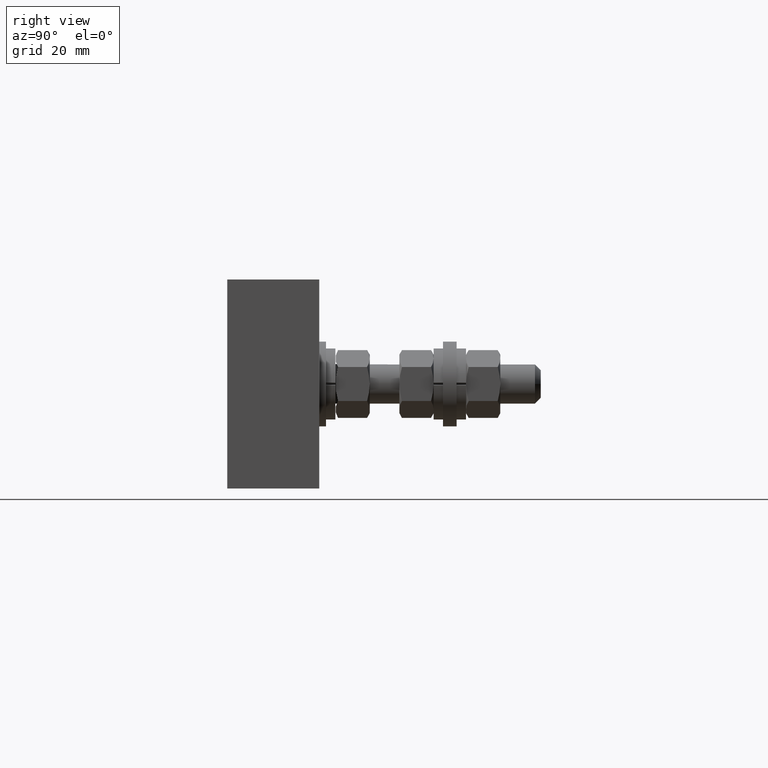
[diagram: clean part render]
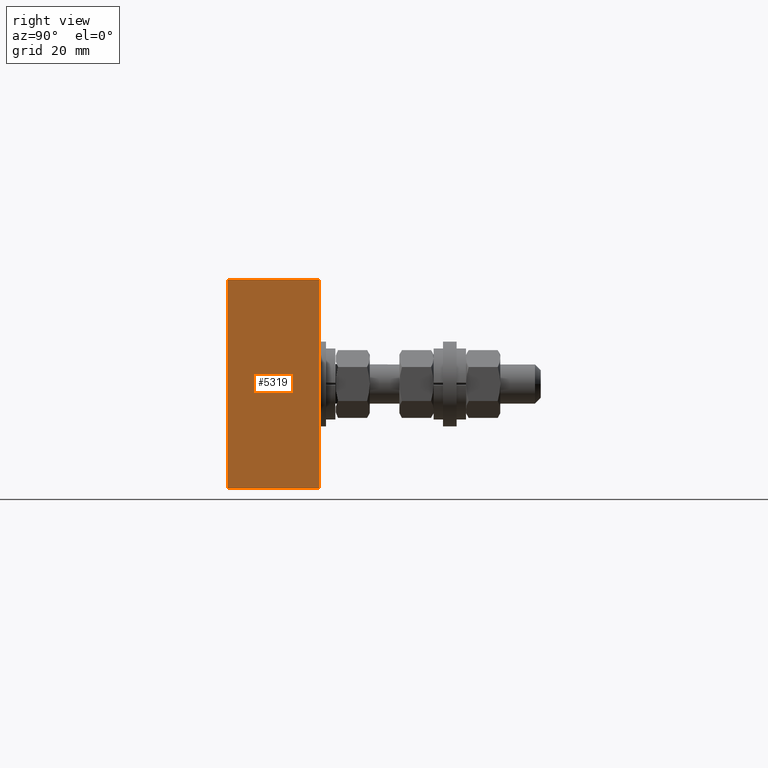
[diagram: same view with one face highlighted and labeled with its STEP entity id]
A machine part, right view. The second image highlights one B-rep face of the part: STEP entity #5319.
In plain terms, the highlighted planar face has unit normal (-1, 0, 0).
Its self-contained STEP definition (entity closure, byte-faithful):
#45 = ORIENTED_EDGE ( 'NONE', *, *, #6151, .T. ) ;
#313 = FACE_OUTER_BOUND ( 'NONE', #5864, .T. ) ;
#1536 = VECTOR ( 'NONE', #4740, 39.37007874015748100 ) ;
#1709 = ORIENTED_EDGE ( 'NONE', *, *, #5091, .T. ) ;
#1722 = LINE ( 'NONE', #5367, #1536 ) ;
#1781 = EDGE_CURVE ( 'NONE', #1983, #7072, #6859, .T. ) ;
#1833 = LINE ( 'NONE', #2765, #6442 ) ;
#1864 = CARTESIAN_POINT ( 'NONE',  ( 5.330000000000000100, -1.733125000000000000, 1.000000000000000000 ) ) ;
#1983 = VERTEX_POINT ( 'NONE', #1864 ) ;
#2070 = VECTOR ( 'NONE', #5397, 39.37007874015748100 ) ;
#2147 = CARTESIAN_POINT ( 'NONE',  ( 5.330000000000000100, -2.613125000000000100, 1.000000000000000000 ) ) ;
#2494 = VECTOR ( 'NONE', #6681, 39.37007874015748100 ) ;
#2754 = DIRECTION ( 'NONE',  ( 0.0000000000000000000, 0.0000000000000000000, 1.000000000000000000 ) ) ;
#2765 = CARTESIAN_POINT ( 'NONE',  ( 5.330000000000000100, -2.613125000000000100, 1.000000000000000000 ) ) ;
#3050 = CARTESIAN_POINT ( 'NONE',  ( 5.330000000000000100, -2.613125000000000100, 1.000000000000000000 ) ) ;
#3794 = ORIENTED_EDGE ( 'NONE', *, *, #1781, .F. ) ;
#4175 = CARTESIAN_POINT ( 'NONE',  ( 5.330000000000000100, -1.733125000000000000, 1.000000000000000000 ) ) ;
#4497 = PLANE ( 'NONE',  #4641 ) ;
#4539 = ORIENTED_EDGE ( 'NONE', *, *, #7119, .F. ) ;
#4641 = AXIS2_PLACEMENT_3D ( 'NONE', #2147, #6344, #2754 ) ;
#4740 = DIRECTION ( 'NONE',  ( 0.0000000000000000000, 1.000000000000000000, 0.0000000000000000000 ) ) ;
#5091 = EDGE_CURVE ( 'NONE', #6074, #6541, #5686, .T. ) ;
#5319 = ADVANCED_FACE ( 'NONE', ( #313 ), #4497, .F. ) ;
#5367 = CARTESIAN_POINT ( 'NONE',  ( 5.330000000000000100, -2.613125000000000100, -1.000000000000000000 ) ) ;
#5397 = DIRECTION ( 'NONE',  ( -0.0000000000000000000, -0.0000000000000000000, -1.000000000000000000 ) ) ;
#5686 = LINE ( 'NONE', #3050, #2494 ) ;
#5746 = CARTESIAN_POINT ( 'NONE',  ( 5.330000000000000100, -2.613125000000000100, -1.000000000000000000 ) ) ;
#5864 = EDGE_LOOP ( 'NONE', ( #45, #3794, #4539, #1709 ) ) ;
#6074 = VERTEX_POINT ( 'NONE', #7085 ) ;
#6151 = EDGE_CURVE ( 'NONE', #6541, #7072, #1722, .T. ) ;
#6344 = DIRECTION ( 'NONE',  ( -1.000000000000000000, 0.0000000000000000000, 0.0000000000000000000 ) ) ;
#6442 = VECTOR ( 'NONE', #6947, 39.37007874015748100 ) ;
#6541 = VERTEX_POINT ( 'NONE', #5746 ) ;
#6681 = DIRECTION ( 'NONE',  ( -0.0000000000000000000, -0.0000000000000000000, -1.000000000000000000 ) ) ;
#6859 = LINE ( 'NONE', #4175, #2070 ) ;
#6947 = DIRECTION ( 'NONE',  ( 0.0000000000000000000, 1.000000000000000000, 0.0000000000000000000 ) ) ;
#7006 = CARTESIAN_POINT ( 'NONE',  ( 5.330000000000000100, -1.733125000000000000, -1.000000000000000000 ) ) ;
#7072 = VERTEX_POINT ( 'NONE', #7006 ) ;
#7085 = CARTESIAN_POINT ( 'NONE',  ( 5.330000000000000100, -2.613125000000000100, 1.000000000000000000 ) ) ;
#7119 = EDGE_CURVE ( 'NONE', #6074, #1983, #1833, .T. ) ;